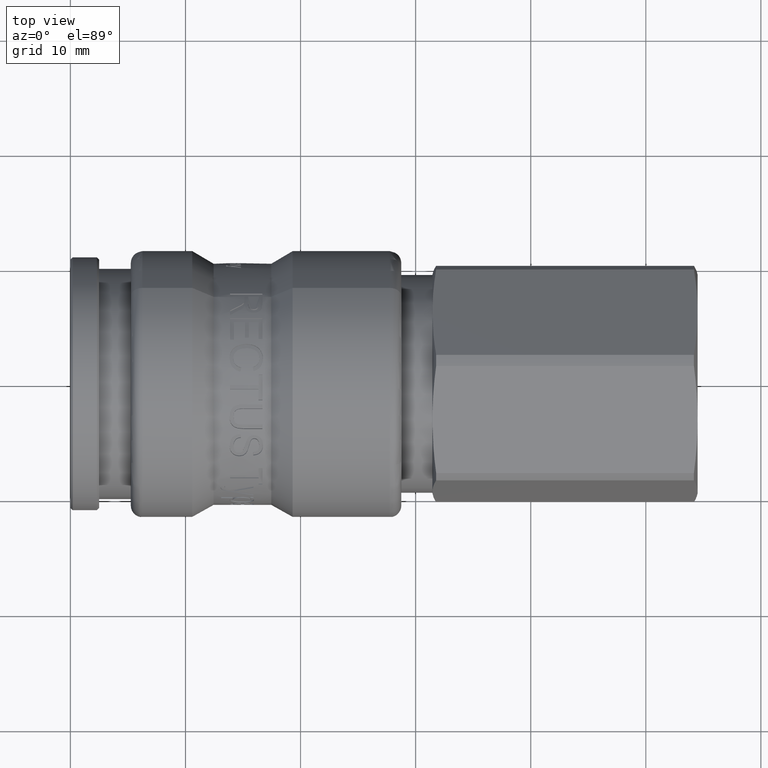
[diagram: clean part render]
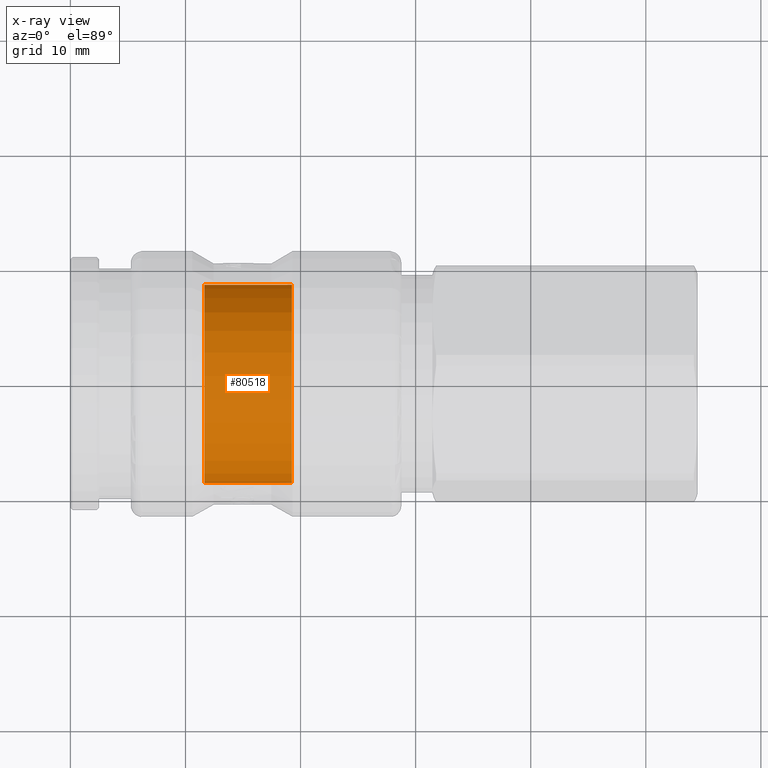
[diagram: x-ray — body ghosted, one internal face saturated and labeled with its STEP entity id]
A machine part, top view, then the same camera in x-ray: the body is ghosted and one INTERNAL B-rep face — a face not visible from any outside direction — is saturated and labeled: STEP entity #80518.
In plain terms, the highlighted cylindrical surface (bore or boss wall) has radius 8.625 mm, axis along (1, 0, 0).
Its self-contained STEP definition (entity closure, byte-faithful):
#80452=CARTESIAN_POINT('',(19.250000000000000,6.117481770941896,6.080052777911851));
#80453=VERTEX_POINT('',#80452);
#80454=CARTESIAN_POINT('',(19.250000000000000,0.0,0.0));
#80455=DIRECTION('',(1.000000000000000,0.0,0.0));
#80456=DIRECTION('',(0.0,0.709273248804858,0.704933655410070));
#80457=AXIS2_PLACEMENT_3D('',#80454,#80455,#80456);
#80458=CIRCLE('',#80457,8.625000000000000);
#80459=EDGE_CURVE('',#80453,#80453,#80458,.T.);
#80499=CARTESIAN_POINT('',(15.449999999999999,0.0,0.0));
#80500=DIRECTION('',(1.0,0.0,0.0));
#80501=DIRECTION('',(0.0,0.709273248804858,0.704933655410070));
#80502=AXIS2_PLACEMENT_3D('',#80499,#80500,#80501);
#80503=CYLINDRICAL_SURFACE('',#80502,8.625000000000000);
#80504=CARTESIAN_POINT('',(11.650000000000000,6.117481770941896,6.080052777911851));
#80505=VERTEX_POINT('',#80504);
#80506=CARTESIAN_POINT('',(11.650000000000000,0.0,0.0));
#80507=DIRECTION('',(1.000000000000000,0.0,0.0));
#80508=DIRECTION('',(0.0,0.709273248804858,0.704933655410070));
#80509=AXIS2_PLACEMENT_3D('',#80506,#80507,#80508);
#80510=CIRCLE('',#80509,8.625000000000000);
#80511=EDGE_CURVE('',#80505,#80505,#80510,.T.);
#80512=ORIENTED_EDGE('',*,*,#80511,.F.);
#80513=EDGE_LOOP('',(#80512));
#80514=FACE_OUTER_BOUND('',#80513,.T.);
#80515=ORIENTED_EDGE('',*,*,#80459,.T.);
#80516=EDGE_LOOP('',(#80515));
#80517=FACE_BOUND('',#80516,.T.);
#80518=ADVANCED_FACE('',(#80514,#80517),#80503,.F.);